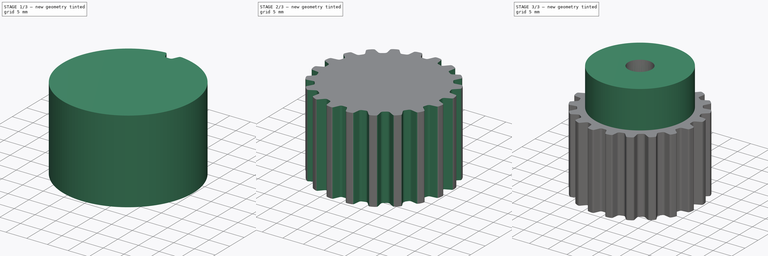
[diagram: build sequence overview — one tinted view per stage of 3, left to right]
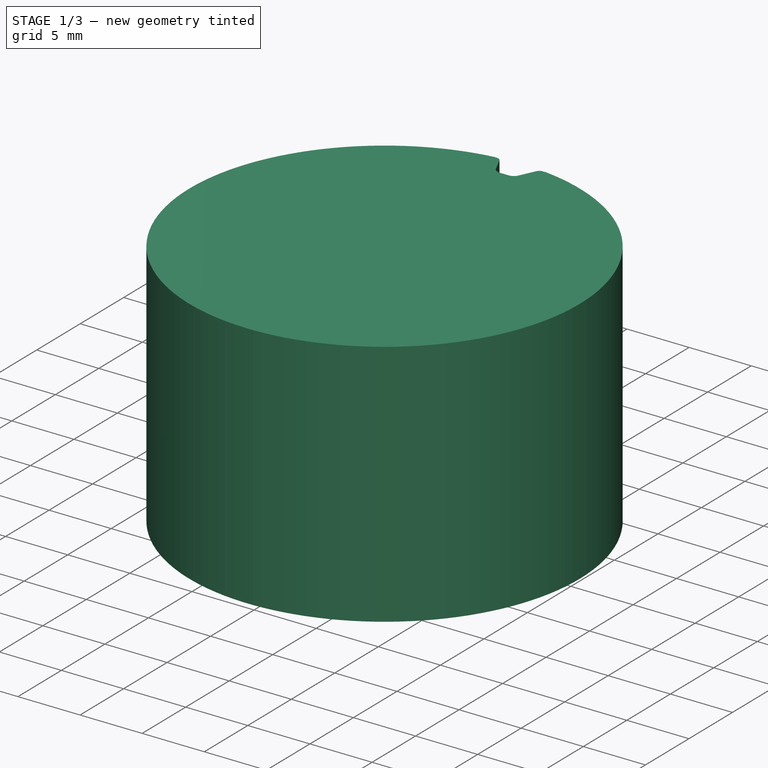
[diagram: stage 1 of 3 — iso view after this stage's code; geometry added in this stage tinted green]
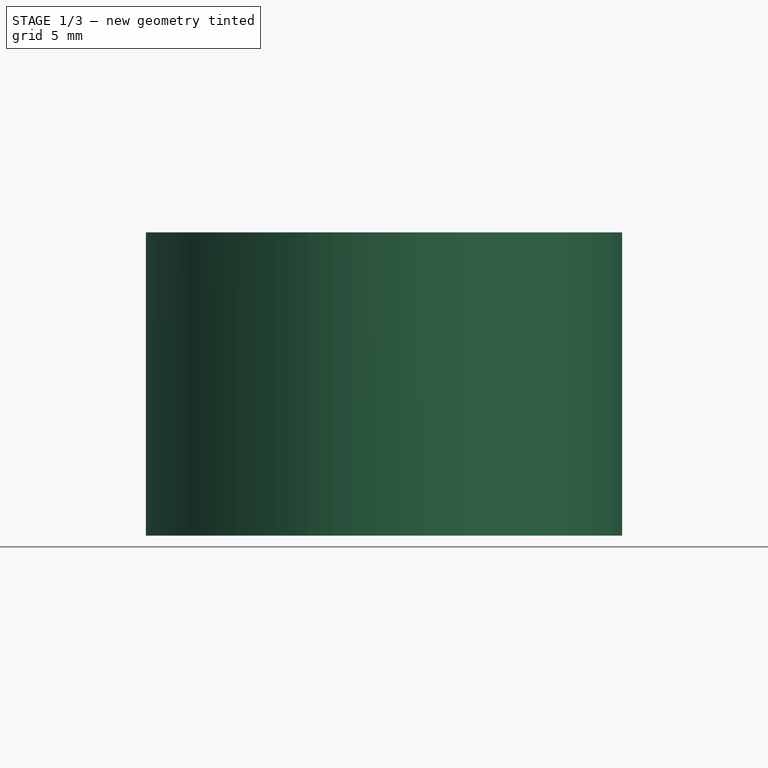
[diagram: stage 1 of 3 — front view after this stage's code; geometry added in this stage tinted green]
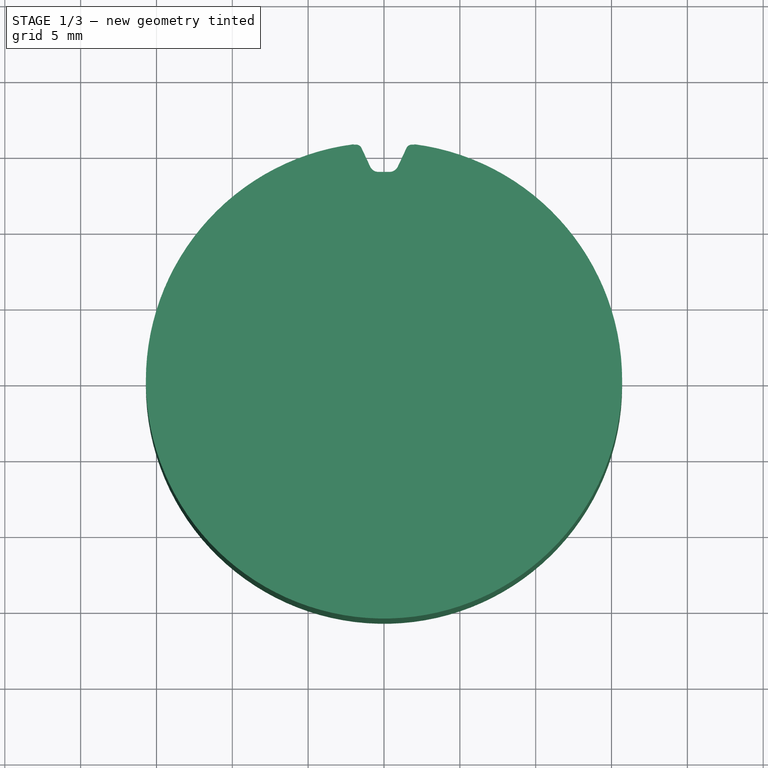
[diagram: stage 1 of 3 — top view after this stage's code; geometry added in this stage tinted green]
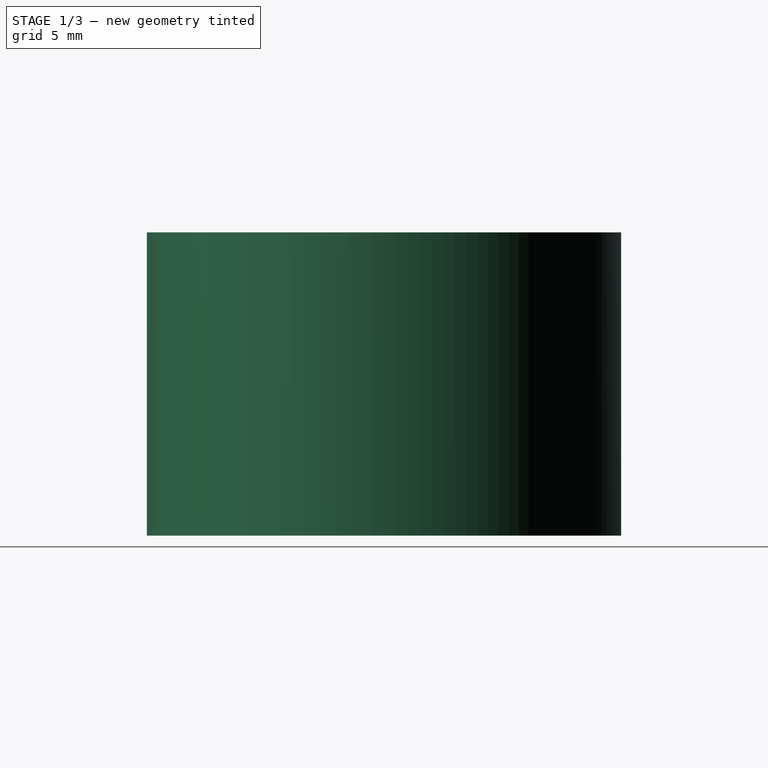
[diagram: stage 1 of 3 — right view after this stage's code; geometry added in this stage tinted green]
FCSTD DOCUMENT  (FreeCAD 0.16R5639 (Git))
Label: Z-Axis-SM-pulley
License: CreativeCommons Attribution-ShareAlike
LicenseURL: http://creativecommons.org/licenses/by-sa/4.0/
objects: Sketcher::SketchObject×4, PartDesign::Pad×2, PartDesign::Pocket×2, PartDesign::PolarPattern×1
note: 13 computed .brp shape members not serialized (recipe doc carries the construction recipe); baked Part::Feature solids carry a one-line shape summary decoded from their .brp

FEATURE [Sketcher::SketchObject] Sketch
  Placement = pos=(0,0,20) rot=(0,0,1;0rad)
  sketch-geometry (1):
    g0: Circle CenterX=0 CenterY=0 CenterZ=0 NormalX=0 NormalY=0 NormalZ=1 Radius=15.7
  constraints (2):
    c: Coincident(g0,g-1)
    c: Radius(g0) = 15.7
FEATURE [PartDesign::Pad] Pad
  Length = 20
  Length2 = 100
  Placement = pos=(0,0,20) rot=(0,0,1;0rad)
  Sketch = -> Sketch
  Type = 0
FEATURE [Sketcher::SketchObject] Sketch002  label="T5 tooth"
  Placement = pos=(0,0,40) rot=(0,0,1;0rad)
  Support = -> Pad [Face3]
  sketch-geometry (12):
    g0: ArcOfCircle CenterX=-1.84252 CenterY=15.15 CenterZ=0 NormalX=0 NormalY=0 NormalZ=1 Radius=0.4 StartAngle=0.436337 EndAngle=1.5708
    g1: ArcOfCircle CenterX=1.84252 CenterY=15.15 CenterZ=0 NormalX=0 NormalY=0 NormalZ=1 Radius=0.4 StartAngle=1.57079 EndAngle=2.70526
    g2: ArcOfCircle CenterX=0.366098 CenterY=14.35 CenterZ=0 NormalX=0 NormalY=0 NormalZ=1 Radius=0.6 StartAngle=4.71239 EndAngle=5.84684
    g3: LineSegment StartX=-1.48 StartY=15.319 StartZ=0 EndX=-0.909881 EndY=14.0964 EndZ=0
    g4: LineSegment StartX=1.48 StartY=15.319 StartZ=0 EndX=0.909881 EndY=14.0964 EndZ=0
    g5: LineSegment StartX=-0.366098 StartY=13.75 StartZ=0 EndX=0.366098 EndY=13.75 EndZ=0
    g6: LineSegment StartX=-1.84252 StartY=15.55 StartZ=0 EndX=-2 EndY=15.55 EndZ=0
    g7: LineSegment StartX=1.84252 StartY=15.55 StartZ=0 EndX=2 EndY=15.55 EndZ=0
    g8: LineSegment StartX=-2 StartY=17 StartZ=0 EndX=-2 EndY=15.55 EndZ=0
    g9: LineSegment StartX=-2 StartY=17 StartZ=0 EndX=2 EndY=17 EndZ=0
    g10: LineSegment StartX=2 StartY=17 StartZ=0 EndX=2 EndY=15.55 EndZ=0
    g11: ArcOfCircle CenterX=-0.366098 CenterY=14.35 CenterZ=0 NormalX=0 NormalY=0 NormalZ=1 Radius=0.6 StartAngle=3.57793 EndAngle=4.71239
  constraints (39):
    c: Coincident(g5,g2)
    c: Radius(g2) = 0.6
    c: Coincident(g4,g2)
    c: Coincident(g4,g1)
    c: Tangent(g2,g4)
    c: Tangent(g4,g1)
    c: Coincident(g3,g0)
    c: Tangent(g0,g3)
    c: Equal(g0,g1)
    c: Radius(g1) = 0.4
    c: Coincident(g6,g0)
    c: Coincident(g1,g7)
    c: Tangent(g1,g7)
    c: Tangent(g6,g0)
    c: Horizontal(g7)
    c: Horizontal(g6)
    c: Coincident(g9,g10)
    c: Vertical(g8)
    c: Vertical(g10)
    c: Horizontal(g9)
    c: Coincident(g8,g9)
    c: Coincident(g6,g8)
    c: Coincident(g10,g7)
    c: Symmetric(g0,g1,g-2)
    c: DistanceY(g-1,g7) = 15.55
    c: DistanceX(g0,g1) = 2.96
    c: Symmetric(g8,g9,g-2)
    c: DistanceY(g-1,g9) = 17
    c: DistanceX(g8,g9) = 4
    c: Horizontal(g5)
    c: Symmetric(g5,g2,g-2)
    c: Tangent(g5,g2)
    c: Angle(g3,g-2) = 2.70526
    c: Coincident(g11,g5)
    c: Coincident(g11,g3)
    c: Equal(g2,g11)
    c: Angle(g-2,g4) = 2.70526
    c: Tangent(g3,g11)
    c: DistanceY(g-1,g2) = 13.75
FEATURE [PartDesign::Pocket] Pocket
  Length = 20
  Placement = pos=(0,0,20) rot=(0,0,1;0rad)
  Sketch = -> Sketch002
  Type = 0
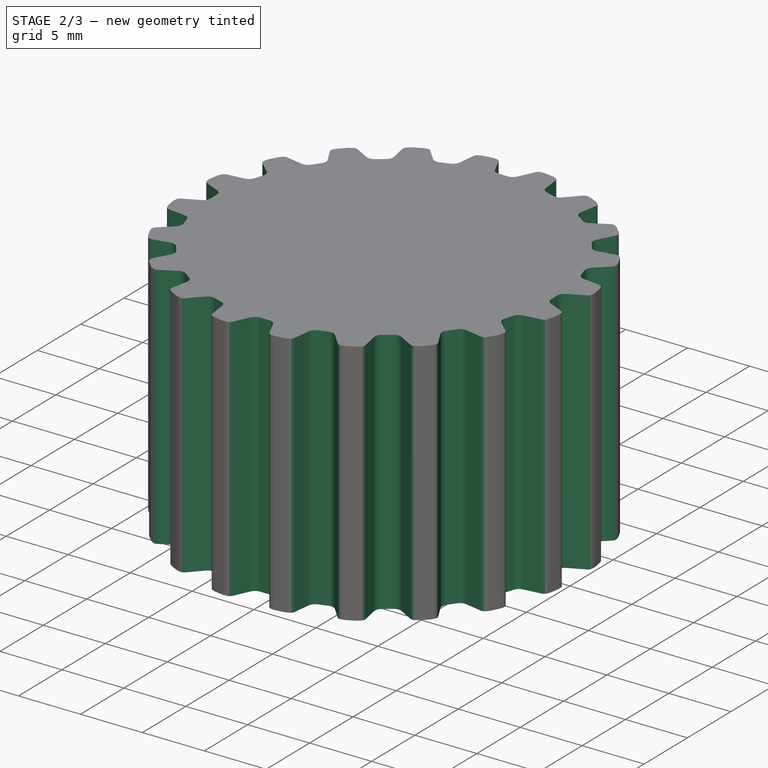
[diagram: stage 2 of 3 — iso view after this stage's code; geometry added in this stage tinted green]
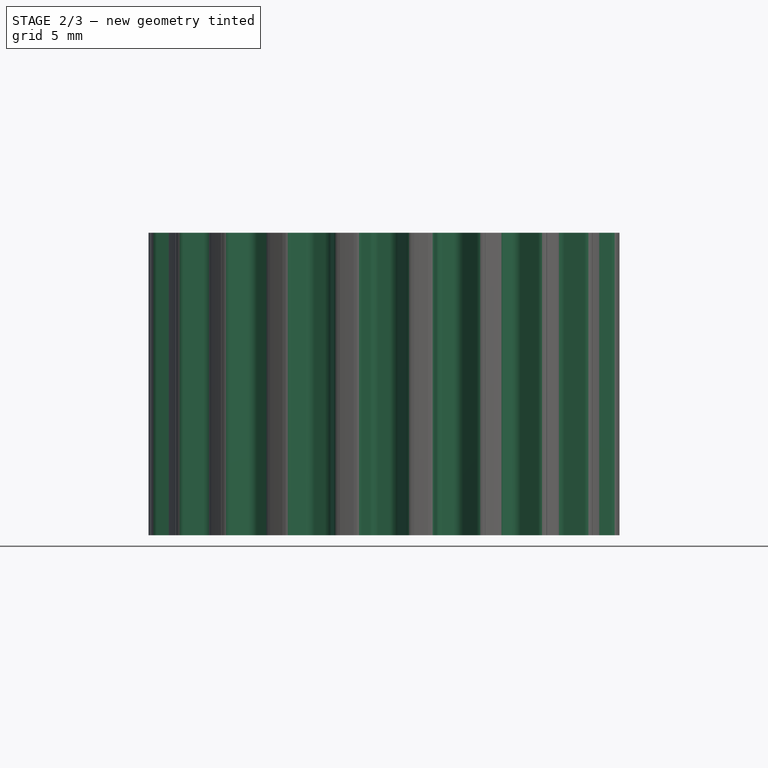
[diagram: stage 2 of 3 — front view after this stage's code; geometry added in this stage tinted green]
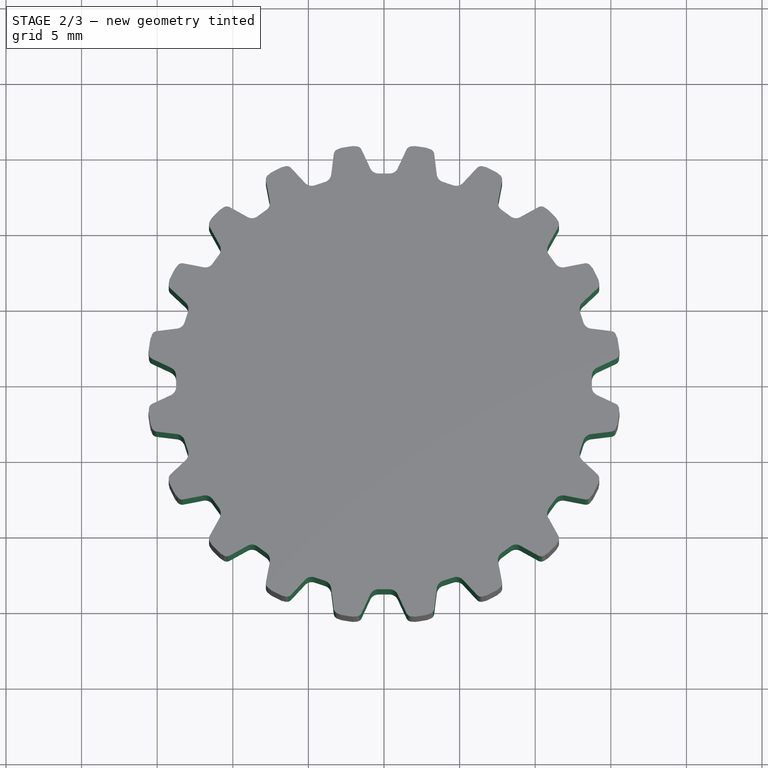
[diagram: stage 2 of 3 — top view after this stage's code; geometry added in this stage tinted green]
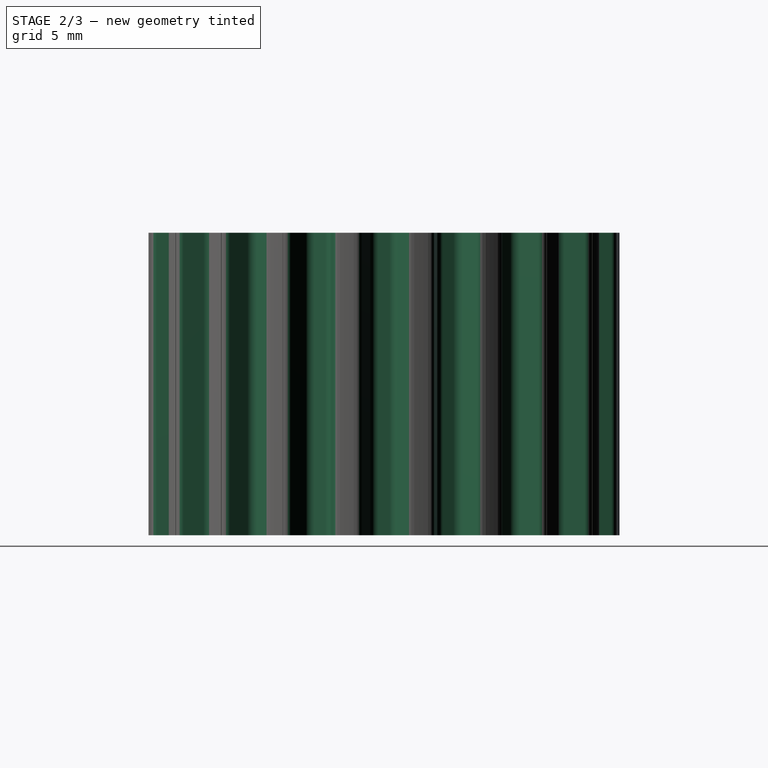
[diagram: stage 2 of 3 — right view after this stage's code; geometry added in this stage tinted green]
FEATURE [PartDesign::PolarPattern] PolarPattern
  Angle = 360
  Axis = -> Sketch002 [N_Axis]
  Occurrences = 20
  Originals = -> [Pocket]
  Placement = pos=(0,0,20) rot=(0,0,1;0rad)
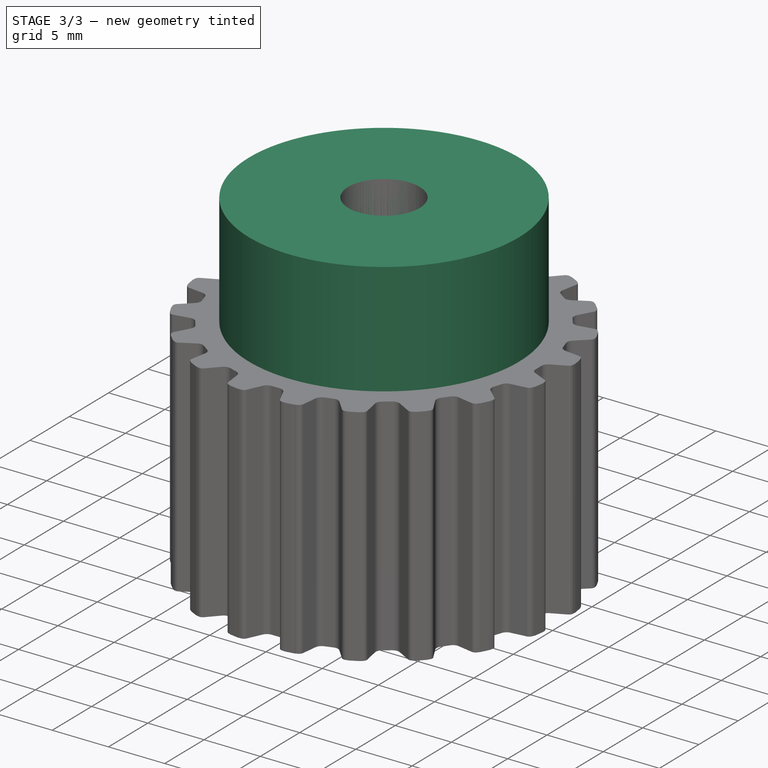
[diagram: stage 3 of 3 — iso view after this stage's code; geometry added in this stage tinted green]
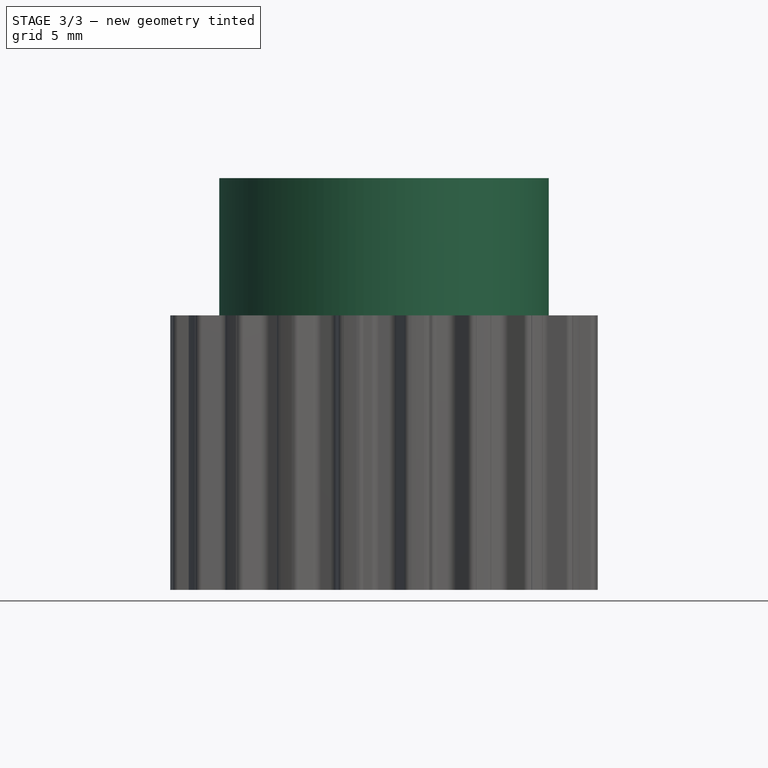
[diagram: stage 3 of 3 — front view after this stage's code; geometry added in this stage tinted green]
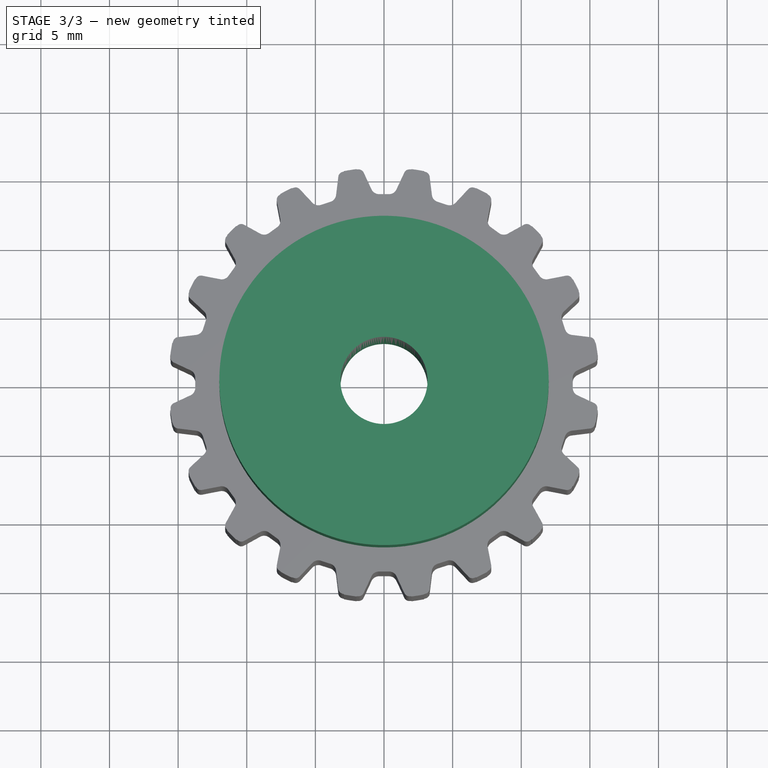
[diagram: stage 3 of 3 — top view after this stage's code; geometry added in this stage tinted green]
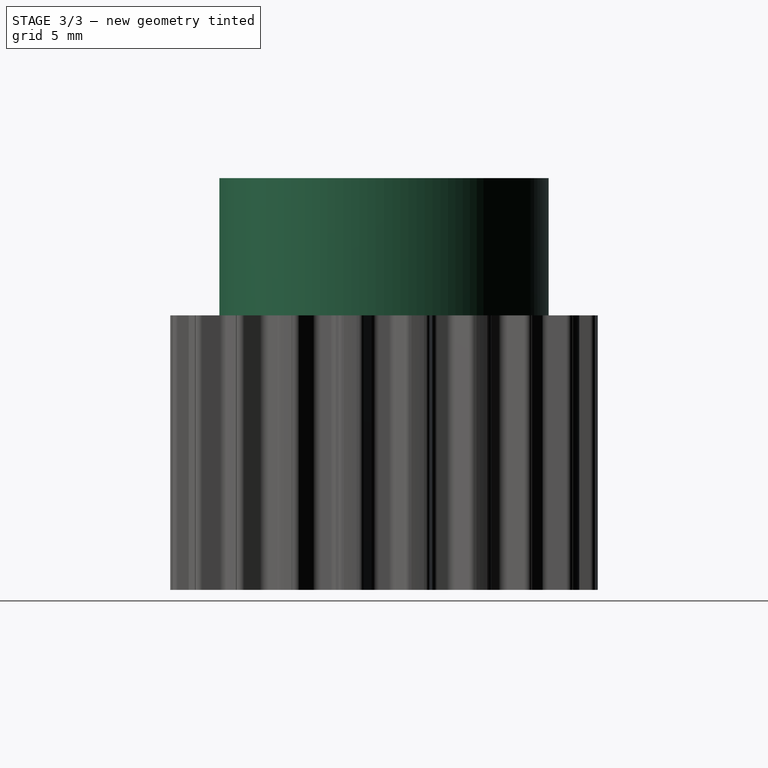
[diagram: stage 3 of 3 — right view after this stage's code; geometry added in this stage tinted green]
FEATURE [Sketcher::SketchObject] Sketch003
  Placement = pos=(0,0,40) rot=(0,0,1;0rad)
  Support = -> PolarPattern [Face242]
  sketch-geometry (1):
    g0: Circle CenterX=0 CenterY=0 CenterZ=0 NormalX=0 NormalY=0 NormalZ=1 Radius=12
  constraints (2):
    c: Coincident(g-1,g0)
    c: Radius(g0) = 12
FEATURE [PartDesign::Pad] Pad001
  Length = 10
  Length2 = 100
  Placement = pos=(0,0,20) rot=(0,0,1;0rad)
  Sketch = -> Sketch003
  Type = 0
FEATURE [Sketcher::SketchObject] Sketch001  label="Bore"
  Placement = pos=(0,0,50) rot=(0,0,1;0rad)
  Support = -> Pad001 [Face1]
  sketch-geometry (1):
    g0: Circle CenterX=0 CenterY=0 CenterZ=0 NormalX=0 NormalY=0 NormalZ=1 Radius=3.175
  constraints (2):
    c: Coincident(g-1,g0)
    c: Radius(g0) = 3.175
FEATURE [PartDesign::Pocket] Pocket001
  Length = 30
  Placement = pos=(0,0,20) rot=(0,0,1;0rad)
  Sketch = -> Sketch001
  Type = 0
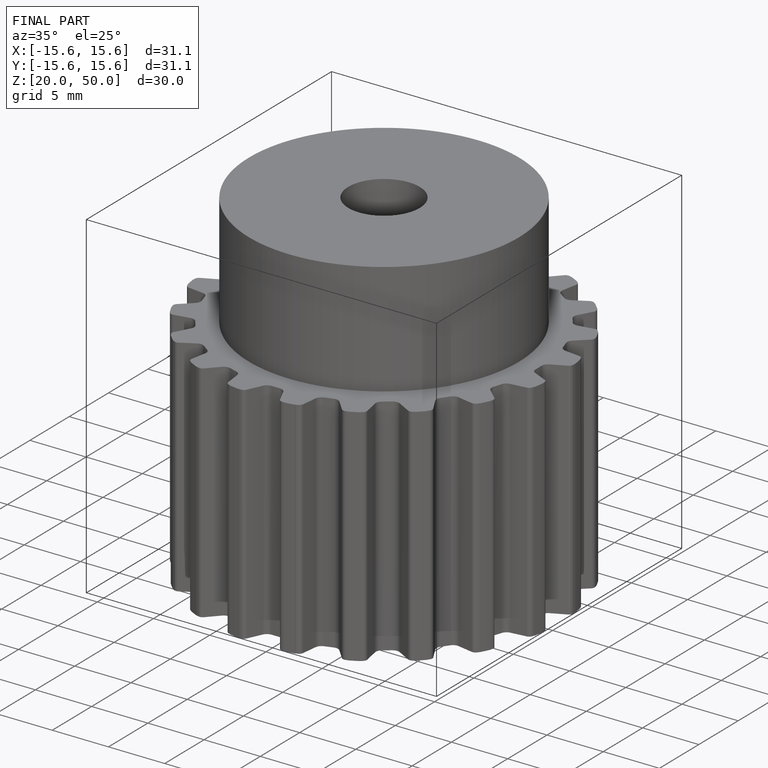
[diagram: finished part — iso view with bounding-box wireframe]
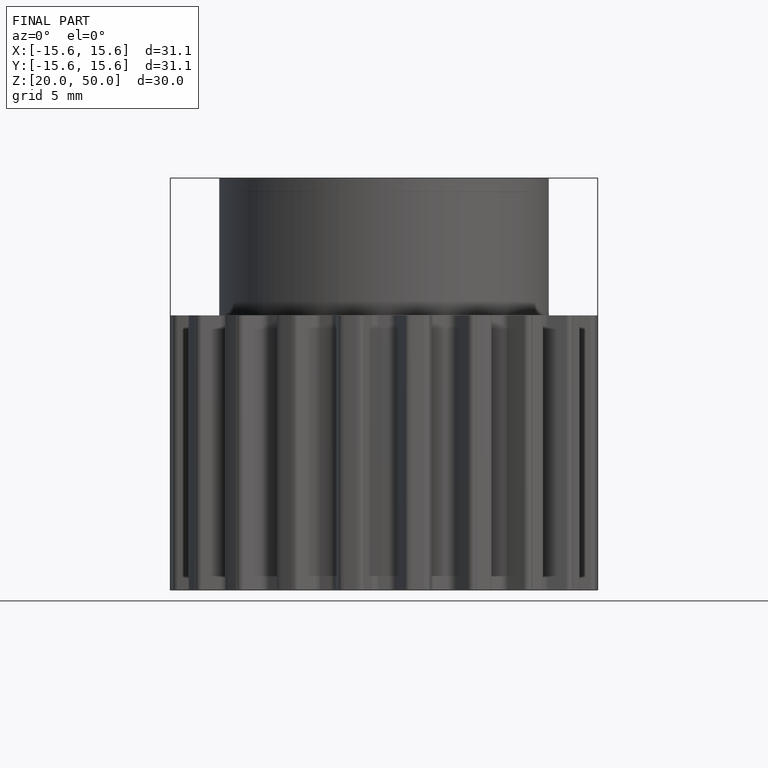
[diagram: finished part — front view with bounding-box wireframe]
